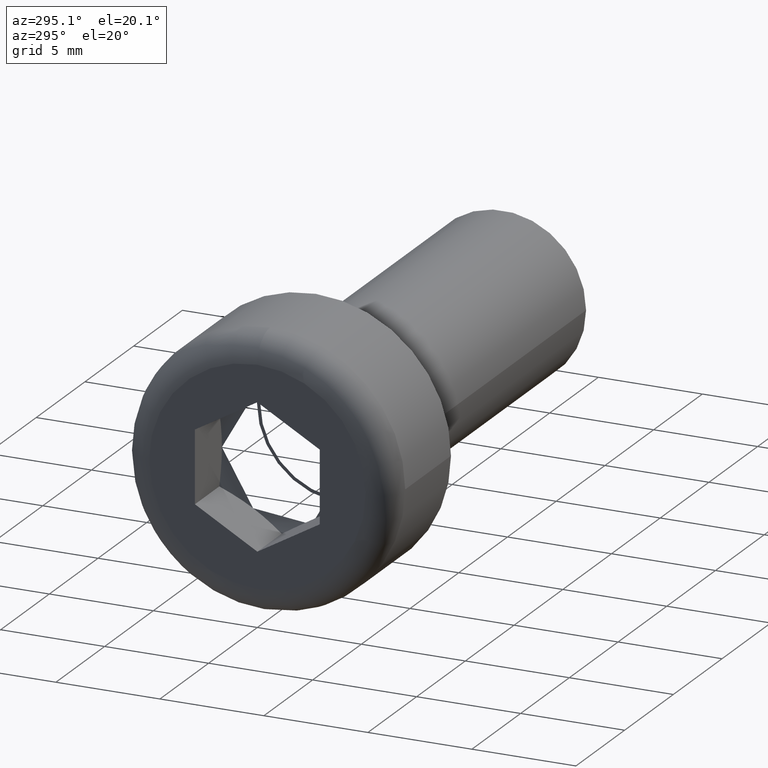
[diagram: clean part render]
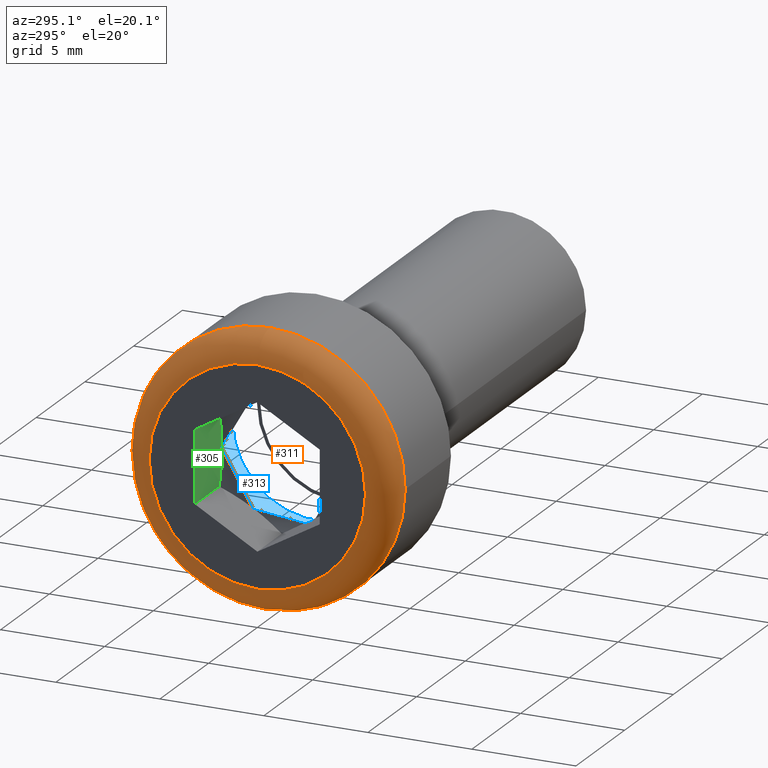
[diagram: same view with three faces highlighted in distinct colors, each labeled with its STEP entity id]
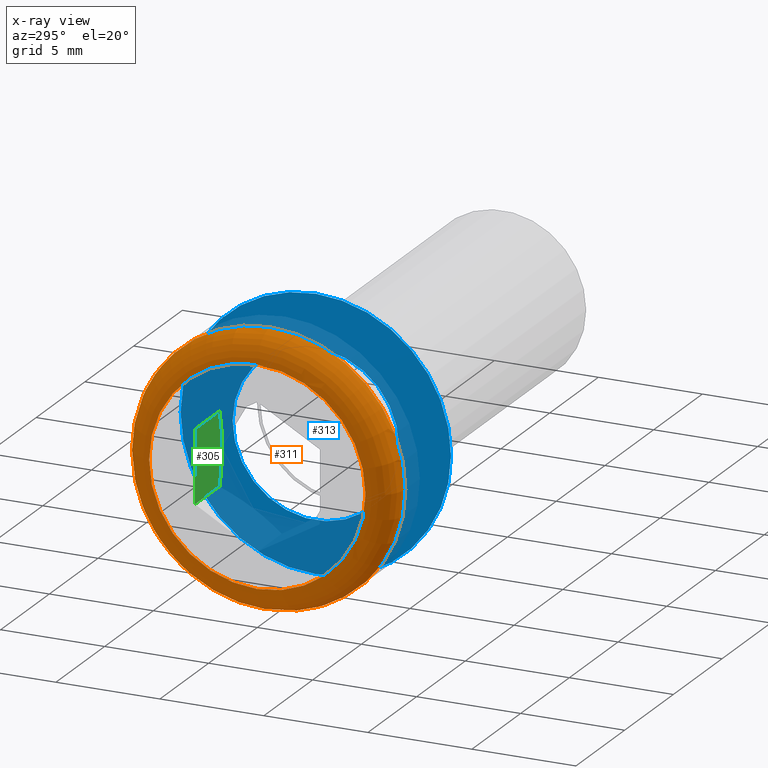
[diagram: x-ray of the same camera — body ghosted, the three highlighted faces saturated]
A machine part, auxiliary view with three faces highlighted in distinct colors.
The next image is the same camera in x-ray (body ghosted, the three faces saturated) — at least one of them is partly hidden behind the body in this view.
Their STEP definitions:

[orange] entity #311 — the highlighted toroidal blend (fillet) surface has major radius 5.2 mm and minor (blend) radius 1.3 mm.
#18=TOROIDAL_SURFACE('',#350,5.2,1.3);
#22=CIRCLE('',#348,5.2);
#23=CIRCLE('',#349,5.2);
#24=CIRCLE('',#351,6.5);
#25=CIRCLE('',#352,6.5);
#26=CIRCLE('',#353,6.5);
#27=CIRCLE('',#354,1.3);
#53=FACE_OUTER_BOUND('',#71,.T.);
#71=EDGE_LOOP('',(#245,#246,#247,#248,#249,#250,#251));
#139=VERTEX_POINT('',#528);
#140=VERTEX_POINT('',#529);
#141=VERTEX_POINT('',#533);
#142=VERTEX_POINT('',#534);
#143=VERTEX_POINT('',#536);
#178=EDGE_CURVE('',#139,#140,#22,.T.);
#179=EDGE_CURVE('',#140,#139,#23,.T.);
#180=EDGE_CURVE('',#141,#142,#24,.T.);
#181=EDGE_CURVE('',#143,#141,#25,.T.);
#182=EDGE_CURVE('',#142,#143,#26,.T.);
#183=EDGE_CURVE('',#142,#140,#27,.T.);
#245=ORIENTED_EDGE('',*,*,#180,.F.);
#246=ORIENTED_EDGE('',*,*,#181,.F.);
#247=ORIENTED_EDGE('',*,*,#182,.F.);
#248=ORIENTED_EDGE('',*,*,#183,.T.);
#249=ORIENTED_EDGE('',*,*,#179,.T.);
#250=ORIENTED_EDGE('',*,*,#178,.T.);
#251=ORIENTED_EDGE('',*,*,#183,.F.);
#311=ADVANCED_FACE('',(#53),#18,.T.);
#348=AXIS2_PLACEMENT_3D('',#530,#408,#409);
#349=AXIS2_PLACEMENT_3D('',#531,#410,#411);
#350=AXIS2_PLACEMENT_3D('',#532,#412,#413);
#351=AXIS2_PLACEMENT_3D('',#535,#414,#415);
#352=AXIS2_PLACEMENT_3D('',#537,#416,#417);
#353=AXIS2_PLACEMENT_3D('',#538,#418,#419);
#354=AXIS2_PLACEMENT_3D('',#539,#420,#421);
#408=DIRECTION('center_axis',(1.,2.29334027171402E-33,0.));
#409=DIRECTION('ref_axis',(0.,1.,0.));
#410=DIRECTION('center_axis',(1.,2.29334027171402E-33,0.));
#411=DIRECTION('ref_axis',(0.,1.,0.));
#412=DIRECTION('center_axis',(1.,2.29334027171402E-33,0.));
#413=DIRECTION('ref_axis',(0.,0.,-1.));
#414=DIRECTION('center_axis',(1.,2.29334027171402E-33,0.));
#415=DIRECTION('ref_axis',(0.,1.,0.));
#416=DIRECTION('center_axis',(1.,2.29334027171402E-33,0.));
#417=DIRECTION('ref_axis',(0.,1.,0.));
#418=DIRECTION('center_axis',(1.,2.29334027171402E-33,0.));
#419=DIRECTION('ref_axis',(0.,1.,0.));
#420=DIRECTION('center_axis',(2.29334027171402E-33,-1.,-1.22464679914735E-16));
#421=DIRECTION('ref_axis',(0.,-1.22464679914735E-16,1.));
#528=CARTESIAN_POINT('',(-8.32678593159861E-16,5.2,0.));
#529=CARTESIAN_POINT('',(-1.11022302462516E-15,-6.36816335556624E-16,5.2));
#530=CARTESIAN_POINT('Origin',(-1.11022302462516E-15,-1.03200312227131E-32,
0.));
#531=CARTESIAN_POINT('Origin',(-1.11022302462516E-15,-1.03200312227131E-32,
0.));
#532=CARTESIAN_POINT('Origin',(1.3,0.,0.));
#533=CARTESIAN_POINT('',(1.3,6.5,0.));
#534=CARTESIAN_POINT('',(1.3,-7.9602041944578E-16,6.5));
#535=CARTESIAN_POINT('Origin',(1.3,-7.33868886948485E-33,0.));
#536=CARTESIAN_POINT('',(1.3,-6.5,-7.9602041944578E-16));
#537=CARTESIAN_POINT('Origin',(1.3,-7.33868886948485E-33,0.));
#538=CARTESIAN_POINT('Origin',(1.3,-7.33868886948485E-33,0.));
#539=CARTESIAN_POINT('Origin',(1.3,-6.36816335556624E-16,5.2));

[blue] entity #313 — the highlighted planar face has unit normal (1, 0, 0).
#20=FACE_BOUND('',#74,.T.);
#28=CIRCLE('',#356,6.5);
#29=CIRCLE('',#357,6.5);
#30=CIRCLE('',#359,4.);
#31=CIRCLE('',#360,4.);
#55=FACE_OUTER_BOUND('',#73,.T.);
#73=EDGE_LOOP('',(#259,#260));
#74=EDGE_LOOP('',(#261,#262));
#144=VERTEX_POINT('',#541);
#145=VERTEX_POINT('',#542);
#146=VERTEX_POINT('',#547);
#147=VERTEX_POINT('',#548);
#184=EDGE_CURVE('',#144,#145,#28,.T.);
#185=EDGE_CURVE('',#145,#144,#29,.T.);
#187=EDGE_CURVE('',#146,#147,#30,.T.);
#188=EDGE_CURVE('',#147,#146,#31,.T.);
#259=ORIENTED_EDGE('',*,*,#184,.T.);
#260=ORIENTED_EDGE('',*,*,#185,.T.);
#261=ORIENTED_EDGE('',*,*,#187,.F.);
#262=ORIENTED_EDGE('',*,*,#188,.F.);
#300=PLANE('',#358);
#313=ADVANCED_FACE('',(#55,#20),#300,.T.);
#356=AXIS2_PLACEMENT_3D('',#543,#424,#425);
#357=AXIS2_PLACEMENT_3D('',#544,#426,#427);
#358=AXIS2_PLACEMENT_3D('',#546,#429,#430);
#359=AXIS2_PLACEMENT_3D('',#549,#431,#432);
#360=AXIS2_PLACEMENT_3D('',#550,#433,#434);
#424=DIRECTION('center_axis',(1.,2.29334027171402E-33,0.));
#425=DIRECTION('ref_axis',(0.,1.,0.));
#426=DIRECTION('center_axis',(1.,2.29334027171402E-33,0.));
#427=DIRECTION('ref_axis',(0.,1.,0.));
#429=DIRECTION('center_axis',(1.,2.29334027171402E-33,0.));
#430=DIRECTION('ref_axis',(0.,0.,-1.));
#431=DIRECTION('center_axis',(1.,2.29334027171402E-33,0.));
#432=DIRECTION('ref_axis',(0.,1.,0.));
#433=DIRECTION('center_axis',(1.,2.29334027171402E-33,0.));
#434=DIRECTION('ref_axis',(0.,1.,0.));
#541=CARTESIAN_POINT('',(6.,6.5,0.));
#542=CARTESIAN_POINT('',(6.,-6.5,-7.9602041944578E-16));
#543=CARTESIAN_POINT('Origin',(6.,3.44001040757102E-33,0.));
#544=CARTESIAN_POINT('Origin',(6.,3.44001040757102E-33,0.));
#546=CARTESIAN_POINT('Origin',(6.,5.25,0.));
#547=CARTESIAN_POINT('',(6.,4.,0.));
#548=CARTESIAN_POINT('',(6.,-4.,-4.89858719658941E-16));
#549=CARTESIAN_POINT('Origin',(6.,3.44001040757103E-33,0.));
#550=CARTESIAN_POINT('Origin',(6.,3.44001040757103E-33,0.));

[green] entity #305 — the highlighted planar face has unit normal (0, 1, 0).
#47=FACE_OUTER_BOUND('',#64,.T.);
#64=EDGE_LOOP('',(#211,#212,#213,#214));
#85=LINE('',#489,#103);
#87=LINE('',#497,#105);
#88=LINE('',#498,#106);
#103=VECTOR('',#386,10.);
#105=VECTOR('',#390,10.);
#106=VECTOR('',#391,10.);
#120=(
BOUNDED_CURVE()
B_SPLINE_CURVE(2,(#493,#494,#495),.UNSPECIFIED.,.F.,.F.)
B_SPLINE_CURVE_WITH_KNOTS((3,3),(0.0224841371605264,0.381496060373957),
 .UNSPECIFIED.)
CURVE()
GEOMETRIC_REPRESENTATION_ITEM()
RATIONAL_B_SPLINE_CURVE((1.02102355330306,1.17897644669694,1.02102355330306))
REPRESENTATION_ITEM('')
);
#129=VERTEX_POINT('',#484);
#130=VERTEX_POINT('',#488);
#131=VERTEX_POINT('',#492);
#132=VERTEX_POINT('',#496);
#163=EDGE_CURVE('',#130,#129,#85,.T.);
#165=EDGE_CURVE('',#131,#129,#120,.T.);
#166=EDGE_CURVE('',#132,#131,#87,.T.);
#167=EDGE_CURVE('',#130,#132,#88,.T.);
#211=ORIENTED_EDGE('',*,*,#165,.F.);
#212=ORIENTED_EDGE('',*,*,#166,.F.);
#213=ORIENTED_EDGE('',*,*,#167,.F.);
#214=ORIENTED_EDGE('',*,*,#163,.T.);
#295=PLANE('',#342);
#305=ADVANCED_FACE('',(#47),#295,.F.);
#342=AXIS2_PLACEMENT_3D('',#491,#388,#389);
#386=DIRECTION('',(1.,0.,0.));
#388=DIRECTION('center_axis',(0.,1.,0.));
#389=DIRECTION('ref_axis',(0.,0.,1.));
#390=DIRECTION('',(1.,0.,0.));
#391=DIRECTION('',(0.,0.,1.));
#484=CARTESIAN_POINT('',(2.5,3.,-1.73205080756888));
#488=CARTESIAN_POINT('',(-4.1633929657993E-16,3.,-1.73205080756888));
#489=CARTESIAN_POINT('',(-4.1633929657993E-16,3.,-1.73205080756888));
#491=CARTESIAN_POINT('Origin',(-4.1633929657993E-16,3.,1.73205080756888));
#492=CARTESIAN_POINT('',(2.5,3.,1.73205080756888));
#493=CARTESIAN_POINT('Ctrl Pts',(2.5,3.,1.73205080756888));
#494=CARTESIAN_POINT('Ctrl Pts',(3.,3.,-1.21430643318376E-16));
#495=CARTESIAN_POINT('Ctrl Pts',(2.5,3.,-1.73205080756888));
#496=CARTESIAN_POINT('',(-4.1633929657993E-16,3.,1.73205080756888));
#497=CARTESIAN_POINT('',(-4.1633929657993E-16,3.,1.73205080756888));
#498=CARTESIAN_POINT('',(-4.1633929657993E-16,3.,0.866025403784439));